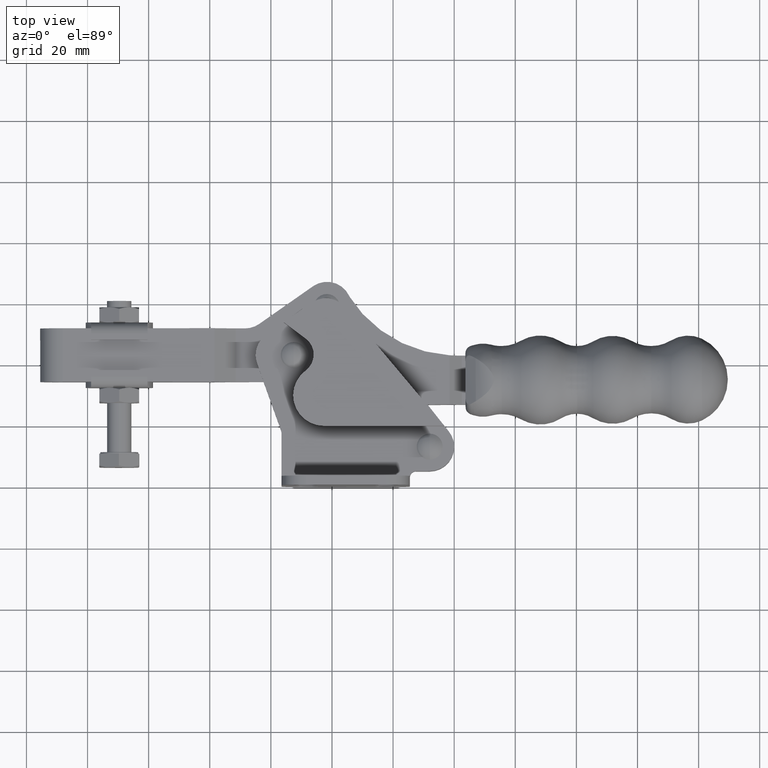
[diagram: clean part render]
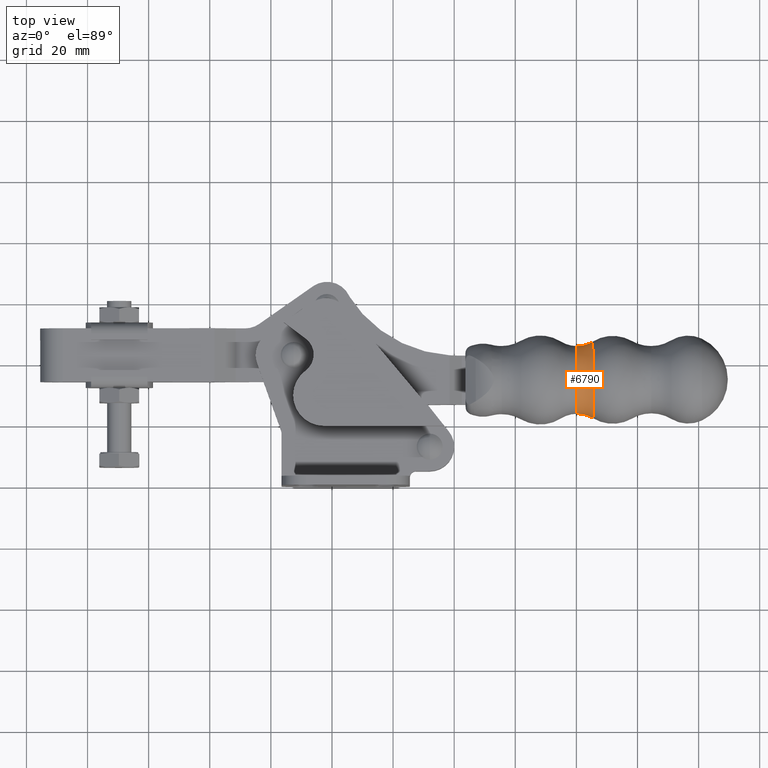
[diagram: same view with one face highlighted and labeled with its STEP entity id]
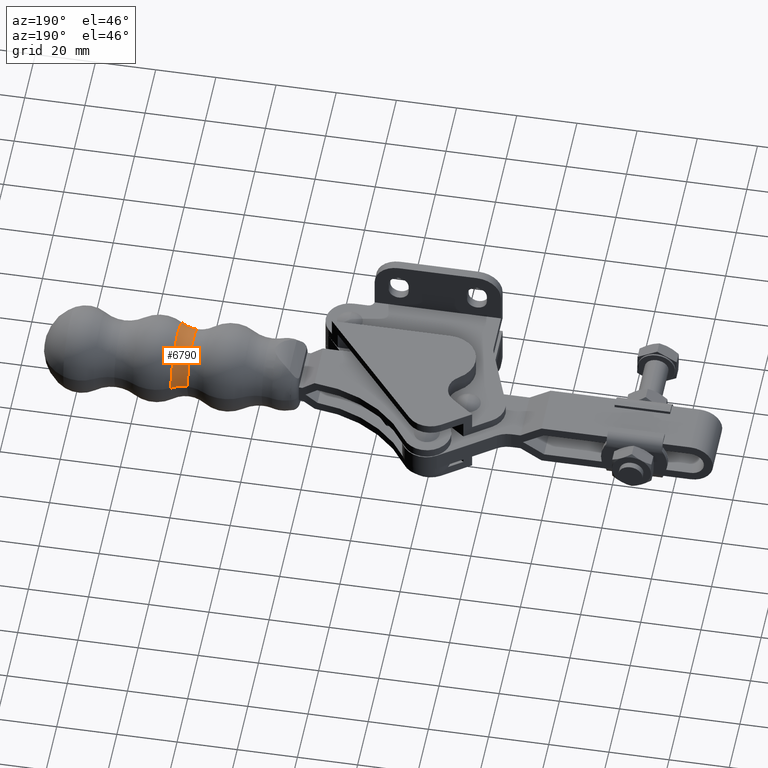
[diagram: same view with one face highlighted and labeled with its STEP entity id]
A machine part, top view. The second image highlights one B-rep face of the part: STEP entity #6790.
A second angle (auxiliary view) of the same face is appended — the face is thin or edge-on in the first view.
In plain terms, the highlighted toroidal blend (fillet) surface has major radius 21.0366 mm and minor (blend) radius 9.9626 mm.
Its self-contained STEP definition (entity closure, byte-faithful):
#110 = AXIS2_PLACEMENT_3D ( 'NONE', #8656, #2910, #9598 ) ;
#188 = VERTEX_POINT ( 'NONE', #9172 ) ;
#486 = CARTESIAN_POINT ( 'NONE',  ( 40.23864245904968600, 23.86028166452813100, -2.999999999999730000 ) ) ;
#1132 = VERTEX_POINT ( 'NONE', #486 ) ;
#1488 = CIRCLE ( 'NONE', #1721, 11.07402691464301400 ) ;
#1519 = CIRCLE ( 'NONE', #110, 12.54741789158744000 ) ;
#1721 = AXIS2_PLACEMENT_3D ( 'NONE', #8716, #2977, #9668 ) ;
#2647 = AXIS2_PLACEMENT_3D ( 'NONE', #2980, #9670, #3939 ) ;
#2791 = ORIENTED_EDGE ( 'NONE', *, *, #8404, .F. ) ;
#2910 = DIRECTION ( 'NONE',  ( 0.9999961257592553400, 0.002783606739412733400, 5.603424691513969200E-022 ) ) ;
#2977 = DIRECTION ( 'NONE',  ( 0.9999961257592553400, 0.002783606739412733400, 5.603424691513969200E-022 ) ) ;
#2980 = CARTESIAN_POINT ( 'NONE',  ( 40.26637441130726800, 13.89772322382954300, -2.999999999999728700 ) ) ;
#3158 = AXIS2_PLACEMENT_3D ( 'NONE', #11445, #5737, #12393 ) ;
#3498 = ORIENTED_EDGE ( 'NONE', *, *, #4903, .T. ) ;
#3731 = TOROIDAL_SURFACE ( 'NONE', #5444, 21.03662395284096900, 9.962597038197959200 ) ;
#3939 = DIRECTION ( 'NONE',  ( 0.0000000000000000000, -1.000000000000000000, 1.305927161355849400E-016 ) ) ;
#4390 = EDGE_CURVE ( 'NONE', #7367, #1132, #1488, .T. ) ;
#4683 = EDGE_LOOP ( 'NONE', ( #3498, #9625, #2791, #11111 ) ) ;
#4903 = EDGE_CURVE ( 'NONE', #12368, #7367, #6308, .T. ) ;
#4924 = FACE_OUTER_BOUND ( 'NONE', #4683, .T. ) ;
#5434 = CARTESIAN_POINT ( 'NONE',  ( 40.17699098714560800, 46.00824968692159400, -2.999999999999731300 ) ) ;
#5444 = AXIS2_PLACEMENT_3D ( 'NONE', #7336, #11167, #5449 ) ;
#5449 = DIRECTION ( 'NONE',  ( -0.002783606739412733400, 0.9999961257592552300, 4.973007147533947500E-038 ) ) ;
#5737 = DIRECTION ( 'NONE',  ( 5.601984613625268000E-022, 5.251393111838497400E-023, -1.000000000000000000 ) ) ;
#6308 = CIRCLE ( 'NONE', #3158, 9.962597038197959200 ) ;
#6790 = ADVANCED_FACE ( 'NONE', ( #4924 ), #3731, .F. ) ;
#7336 = CARTESIAN_POINT ( 'NONE',  ( 40.20781672309764300, 34.93426567572486600, -2.999999999999731300 ) ) ;
#7367 = VERTEX_POINT ( 'NONE', #5434 ) ;
#8404 = EDGE_CURVE ( 'NONE', #188, #1132, #9798, .T. ) ;
#8656 = CARTESIAN_POINT ( 'NONE',  ( 45.42188514801277000, 34.94877964796284400, -2.999999999999731300 ) ) ;
#8716 = CARTESIAN_POINT ( 'NONE',  ( 40.20781672309764300, 34.93426567572486600, -2.999999999999731300 ) ) ;
#9172 = CARTESIAN_POINT ( 'NONE',  ( 45.45681222501802700, 22.40141036809303900, -2.999999999999729500 ) ) ;
#9598 = DIRECTION ( 'NONE',  ( -0.002783606739412951100, 0.9999961257592553400, 0.0000000000000000000 ) ) ;
#9625 = ORIENTED_EDGE ( 'NONE', *, *, #4390, .T. ) ;
#9668 = DIRECTION ( 'NONE',  ( -0.002783606739412939800, 0.9999961257592553400, 0.0000000000000000000 ) ) ;
#9670 = DIRECTION ( 'NONE',  ( -3.414537068120429100E-019, 1.224641529431514800E-016, 1.000000000000000000 ) ) ;
#9781 = CARTESIAN_POINT ( 'NONE',  ( 45.38695807100752700, 47.49614892783264300, -2.999999999999731300 ) ) ;
#9798 = CIRCLE ( 'NONE', #2647, 9.962597038197959200 ) ;
#11111 = ORIENTED_EDGE ( 'NONE', *, *, #11128, .F. ) ;
#11128 = EDGE_CURVE ( 'NONE', #12368, #188, #1519, .T. ) ;
#11167 = DIRECTION ( 'NONE',  ( 0.9999961257592553400, 0.002783606739412733400, 5.603424691513969200E-022 ) ) ;
#11445 = CARTESIAN_POINT ( 'NONE',  ( 40.14925903488802600, 55.97080812762018800, -2.999999999999731300 ) ) ;
#12368 = VERTEX_POINT ( 'NONE', #9781 ) ;
#12393 = DIRECTION ( 'NONE',  ( -1.000000000000000000, 0.0000000000000000000, 0.0000000000000000000 ) ) ;